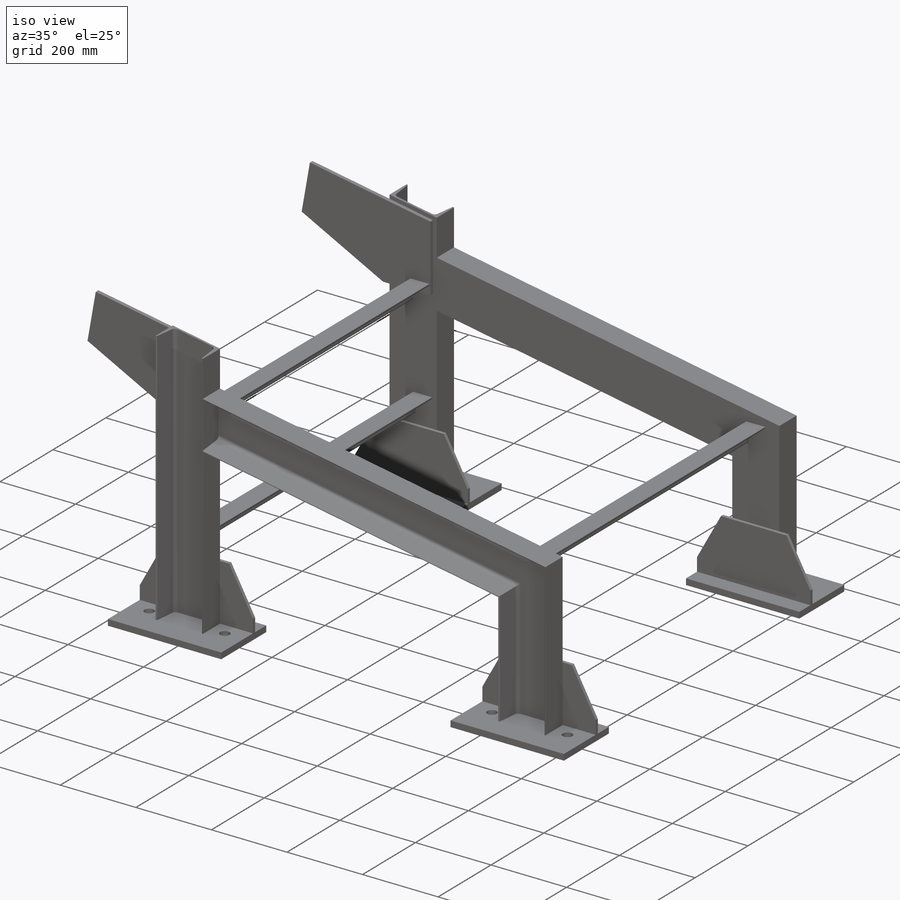
[diagram: iso view]
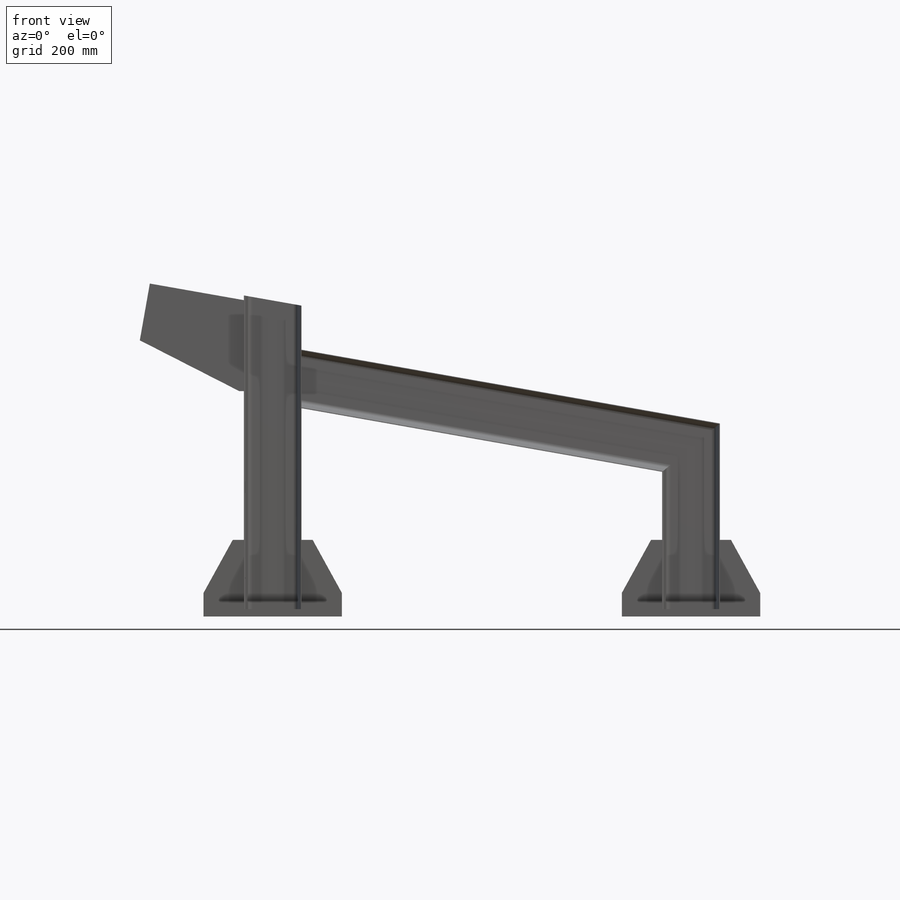
[diagram: front view]
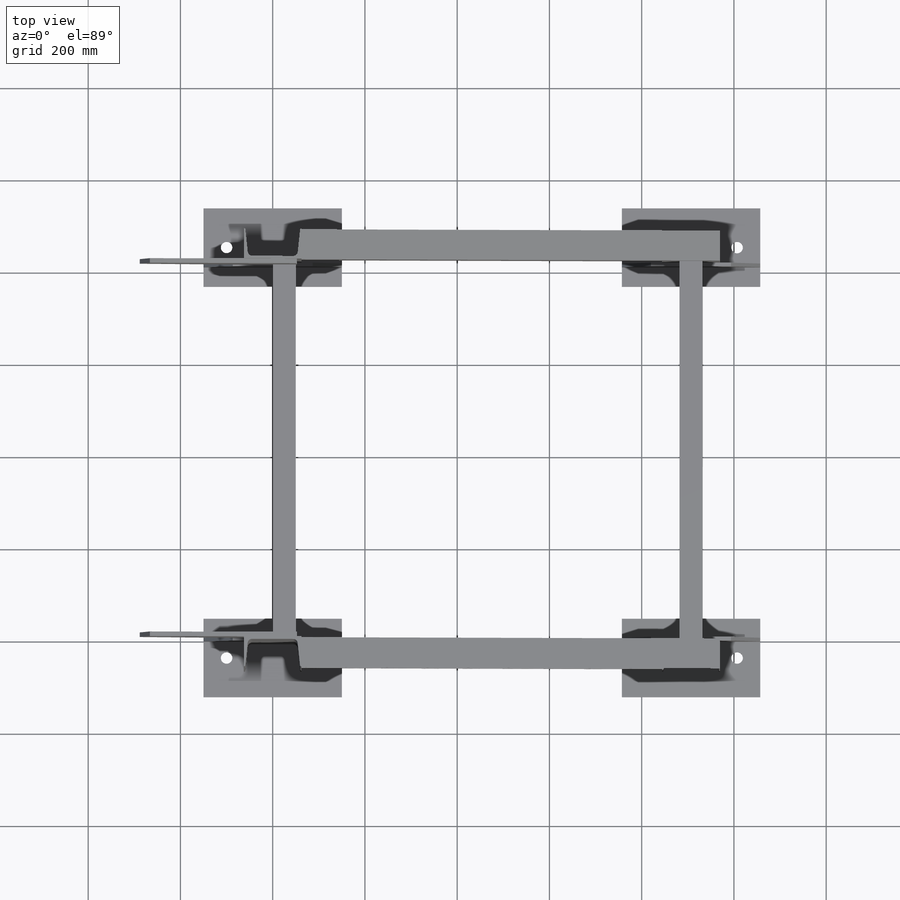
[diagram: top view]
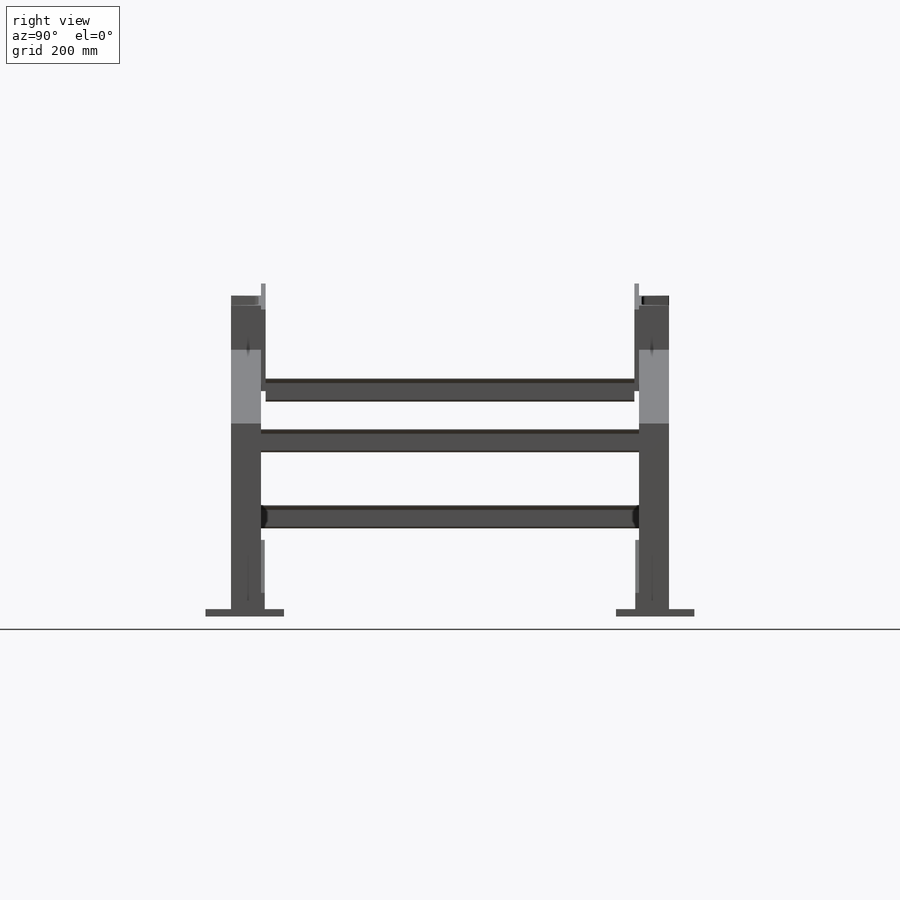
[diagram: right view]
SOLIDWORKS PART (.sldprt)
format: sldprt  version: not decoded by parser v0  size: 945,152 bytes
history: native  units: mm
features: sketch x28, extrude x12, plane x9, mirror x5, hole x3, move_body x3, surface_op x2, material x1, boolean_combine x1, cut_extrude x1, thread x1, pattern_linear x1 + 1 further entry (+16 scaffold rows collapsed)
feature tree (84):
  scaffold x16  (default folders/planes/origin — collapsed)
  material  "Material <not specified>"
  sketch  "Sketch1"  dims[c1.D1=669.0mm c1.D2=907.0mm c1.D3=350.0mm c1.D4=395.0mm c1.D5=90.0mm c2.D5=~73.038294deg c3.D5=511.0mm c4.D5=75.0deg c5.D5=~681.544046mm c6.D5=~16.961706deg c7.D5=~1045.478359mm c8.D5=~16.961706deg c8.D4=90.0mm c9.D4=100.0deg]
  plane  "Plane1"
  sketch  "Sketch11"  dims[c1.D4=6.35mm c1.D5=6.35mm c2.D4=6.35mm c2.D5=6.35mm c2.RI=9.5mm c2.D2=3.175mm c3.D4=9.525mm c3.RA=8.382mm c4.D4=2.4mm c4.D1=~380.99967mm c4.D2=6.35mm c4.D3=~94.386318mm c4.D6=6.35mm c5.D2=45.0deg c5.D6=~9.775613mm c6.D2=12.84deg c6.D6=~18.186384mm c6.D7=~8.667528deg c6.D8=~7.604041mm c7.D2=~5.342953mm c7.D8=~5.388932mm c8.D2=6.35mm c8.D7=6.35mm c8.D8=5.0deg c9.D2=~9.462999deg c9.D7=~4.995508mm c9.D1=76.2mm c10.D2=152.4mm c10.D3=12.7mm c10.D6=~9.462997deg c10.Depth=125.0mm c11.D2=6.0deg c11.BF=65.0mm c11.TW=5.5mm c11.TF=7.5mm c11.D8=~109.715019mm c11.d1=89.4mm c11.D3=22.0mm]
  plane  "Plane2"
  sketch  "Sketch12"  dims[c1.D4=6.35mm c1.D5=6.35mm c2.D4=6.35mm c2.D5=6.35mm c2.RI=9.5mm c2.D2=3.175mm c3.D4=9.525mm c3.RA=8.382mm c4.D4=2.4mm c4.D1=~380.99967mm c4.D2=6.35mm c4.D3=~94.386318mm c4.D6=6.35mm c5.D2=45.0deg c5.D6=~9.775613mm c6.D2=12.84deg c6.D6=~18.186384mm c6.D7=~8.667528deg c6.D8=~7.604041mm c7.D2=~5.342953mm c7.D8=~5.388932mm c8.D2=6.35mm c8.D7=6.35mm c8.D8=5.0deg c9.D2=~9.462999deg c9.D7=~4.995508mm c9.D1=76.2mm c10.D2=152.4mm c10.D3=12.7mm c10.D6=~9.462997deg c10.Depth=125.0mm c11.D2=6.0deg c11.BF=65.0mm c11.TW=5.5mm c11.TF=7.5mm c11.D8=~109.715019mm c11.d1=89.4mm c11.D3=22.0mm]
  plane  "Plane3"  Offset=35.25mm
  sketch  "Sketch14"  dims[D1=170.0mm D2=300.0mm D3=62.5mm]
  extrude  "Extrude1"  Depth=16mm
  sketch  "Sketch15"  dims[D1=170.0mm D2=300.0mm D3=62.5mm]
  extrude  "Extrude2"  Depth=16mm
  hole  "Ø25.0 (25) Diameter Hole1"  Diameter=25mm Depth=20mm
  sketch  "3DSketch1"  dims[c1.D1=~47.947079mm c1.D2=50.0mm c2.D2=~203.343036mm c2.D5=200.0mm c2.D3=~47.947079mm c2.D4=~47.947079mm c3.D3=~55.927685mm c3.D2=100.0mm c3.D4=~169.164996mm c4.D2=200.0mm c4.D1=200.0mm c5.D2=200.0mm c6.D2=~195.910694mm c6.D5=~195.910694mm c7.D2=~153.756504mm c7.D1=200.0mm c8.D2=~53.265914mm c8.D5=100.0mm c9.D2=200.0mm c9.D3=~86.492774mm]
  sketch  "Sketch16"  dims[hole-wizard template sketch: 46 standard entries collapsed; hole parameters kept: c15.Hole Dia.=25.0mm c15.Hole Depth=20.0mm c15.D3=~14.816244mm c15.Drill Angle=118.0deg]
  sketch  "Sketch18"  dims[c1.D1=89.4mm c2.D1=10.0deg c2.D2=250.0mm c3.D1=370.0mm]
  surface_op  "Surface-Extrude1"
  sketch  "Sketch19"  dims[D1=0.0mm]
  extrude  "Extrude3"  [1 undecoded]
  boolean_combine  "Combine1"
  sketch  "Sketch20"  dims[c1.D1=269.0mm c1.D2=256.0mm c1.D3=125.0mm c1.D4=177.0mm c1.D5=225.0mm c2.D5=~74.220979deg c3.D5=160.0mm c4.D5=112.0deg c4.D6=118.0mm c4.D7=144.0mm c4.D1=10.0mm c4.D2=10.0mm c5.D5=~752.251639mm c5.D3=10.0mm c6.D5=125.0mm c6.D6=~160.523228mm c6.D7=~100.456485mm c7.D5=125.0mm c7.D6=~215.636084mm]
  extrude  "Extrude4"  Depth=10mm
  move_body  "Body-Move/Copy1"
  plane  "Plane4"  Offset=445mm
  "Move Face2"
  move_body  "Body-Move/Copy2"
  sketch  "Sketch164"  dims[c1.D1=10.0mm c1.D2=10.0mm c1.D3=10.0mm c1.D4=10.0mm c2.D3=10.0mm c2.D4=10.0mm c2.D1=10.0mm c2.D2=10.0mm c3.D3=10.0mm c3.D4=10.0mm]
  extrude  "Extrude6"  Depth=10mm
  mirror  "Mirror1"
  sketch  "Sketch21"  dims[D1=200.0mm D2=275.0mm]
  plane  "Plane5"
  sketch  "Sketch13"  dims[c1.D2=3.175mm c1.Radius_1=5.0mm c1.Radius_2=3.175mm c2.D2=5.0mm c2.D3=3.0mm c2.V_leg=50.8mm c2.H_leg=50.8mm c2.Thickness=3.175mm c2.D1=6.0mm c3.D3=46.0375mm c3.V_leg=25.4mm c3.H_leg=25.0mm c3.Flat_wid=~0.00508mm c4.D3=6.35mm c4.D2=0.005mm c5.D3=65.0mm c5.D4=65.0mm c6.D3=50.0mm c6.D4=50.0mm]
  sketch  "3DSketch2"
  plane  "Plane6"
  sketch  "Sketch161"  dims[c1.D2=3.175mm c1.Radius_1=5.0mm c1.Radius_2=3.175mm c2.D2=5.0mm c2.D3=3.0mm c2.V_leg=50.8mm c2.H_leg=50.8mm c2.Thickness=3.175mm c2.D1=6.0mm c3.D3=46.0375mm c3.V_leg=25.4mm c3.H_leg=25.0mm c3.Flat_wid=~0.00508mm c4.D3=6.35mm c4.D2=0.005mm c5.D3=65.0mm c5.D4=65.0mm c6.D3=50.0mm c6.D4=50.0mm]
  move_body  "Body-Move/Copy3"
  sketch  "Sketch162"  dims[c1.D1=350.0mm c1.D2=100.0mm c1.D3=60.0mm c1.D4=698.0mm c2.D3=32.5mm]
  extrude  "Extrude5"  Depth=10mm
  sketch  "Sketch168"  dims[D1=15.0mm D2=45.0mm]
  extrude  "Extrude7"  Depth=8mm
  plane  "Plane7"  Offset=175mm
  mirror  "Mirror3"
  mirror  "Mirror2"
  sketch  "Sketch163"  dims[c1.D1=9.0mm c1.D5=9.0mm c1.D2=30.0mm c1.D3=115.0mm c1.D4=45.0mm c1.D6=30.0mm c1.D7=115.0mm c1.D8=790.0mm c1.D9=50.5mm c1.D10=33.0mm c2.D4=10.0mm c2.D9=9.5mm c3.D4=35.25mm c3.D9=35.25mm c3.D10=230.0mm]
  cut_extrude  "Cut-Extrude1"  Depth=30mm
  sketch  "Sketch170"  dims[D1=10.0mm D2=50.0mm]
  extrude  "Extrude8"  Depth=30mm
  hole  "M16 Tapped Hole1"  Diameter=14mm Depth=38mm
  sketch  "3DSketch3"  dims[D1=25.0mm D2=16.0mm]
  sketch  "Sketch171"  dims[hole-wizard template sketch: 46 standard entries collapsed; hole parameters kept: c15.Tap Drill Dia.=14.0mm c15.Tap Drill Depth=38.0mm c15.D3=~14.816244mm c15.Drill Angle=118.0deg]
  thread  "Hole Thread1"  Diameter=12mm  [1 undecoded]
  sketch  "Sketch172"  dims[D1=16.0mm]
  extrude  "Extrude9"  Depth=16mm
  sketch  "Sketch173"  dims[D1=25.0mm]
  extrude  "Extrude10"  Depth=15mm
  sketch  "Sketch174"  dims[D1=35.0mm D2=35.0mm D3=150.0mm D4=25.0mm D5=25.0mm]
  extrude  "Extrude11"  Depth=8mm
  sketch  "Sketch175"  dims[D1=35.0mm D2=35.0mm D3=150.0mm D4=25.0mm D5=25.0mm]
  extrude  "Extrude12"  Depth=8mm
  mirror  "Mirror4"
  mirror  "Mirror5"
  plane  "Plane8"  Offset=35mm
  plane  "Plane9"  Offset=890mm
  sketch  "Sketch176"  dims[D1=50.0mm]
  surface_op  "Surface-Extrude2"
  hole  "Ø18.0 (18) Diameter Hole1"  Diameter=18mm Depth=20mm
  sketch  "Sketch178"  dims[D1=50.0mm FLANGE HOLE=200.0mm D3=~196.494939mm D4=~218.896693mm]
  sketch  "Sketch177"  dims[hole-wizard template sketch: 46 standard entries collapsed; hole parameters kept: c15.Hole Dia.=18.0mm c15.Hole Depth=20.0mm c15.D3=~14.816244mm c15.Drill Angle=118.0deg]
  pattern_linear  "LPattern1"  Count1=2 Count2=1 Spacing1=890mm Spacing2=10mm
decode coverage: 44 of 57 modeling features carry decoded parameters; 1 rows unclassified (native names shown)
note: ~ marks probable driven/reference dimensions
note: 2 parameter values undecoded
note: suppression state not decoded; provenance and decode notes live in map.json
